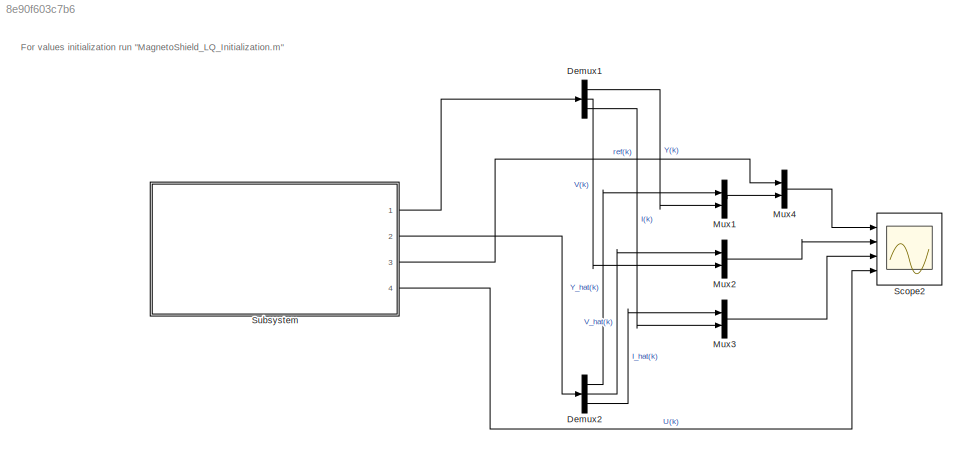
MODEL slx_8e90f603c7b6
KIND model
CONFIG AbsTol = auto
CONFIG EnableMultiTasking = off
CONFIG FixedStep = auto
CONFIG MaxStep = auto
CONFIG MinStep = auto
CONFIG RelTol = 1e-3
CONFIG SampleTimeConstraint = Unconstrained
CONFIG Solver = VariableStepAuto
CONFIG SolverName = VariableStepAuto
CONFIG StartTime = 0.0
CONFIG StopTime = 15
BLOCK [Demux] Demux1
  DisplayOption = bar
  Outputs = 3
  Ports = [1, 3]
BLOCK [Demux] Demux2
  DisplayOption = bar
  Outputs = 3
  Ports = [1, 3]
BLOCK [Mux] Mux1
  DisplayOption = bar
  Inputs = 2
  Ports = [2, 1]
BLOCK [Mux] Mux2
  DisplayOption = bar
  Inputs = 2
  Ports = [2, 1]
BLOCK [Mux] Mux3
  DisplayOption = bar
  Inputs = 2
  Ports = [2, 1]
BLOCK [Mux] Mux4
  DisplayOption = bar
  Inputs = 2
  Ports = [2, 1]
BLOCK [Scope] Scope2
  Floating = off
  NumInputPorts = 4
  Ports = [4]
  ScopeSpecificationString = Simulink.scopes.TimeScopeBlockCfg('CurrentConfiguration', extmgr.ConfigurationSet(extmgr.Configuration('Core','General UI',true,'FigureColor',[0 0 0]),extmgr.Configuration('Core','Source UI',true),extmgr.Configuration('Sources','WiredSimulink',true,'DataLoggingSaveFormat','Structure','DataLogging',true),extmgr.Configuration('Visuals','Time Domain',true,'SerializedDisplays',{struct('MinYLimReal','0...<+3958ch>
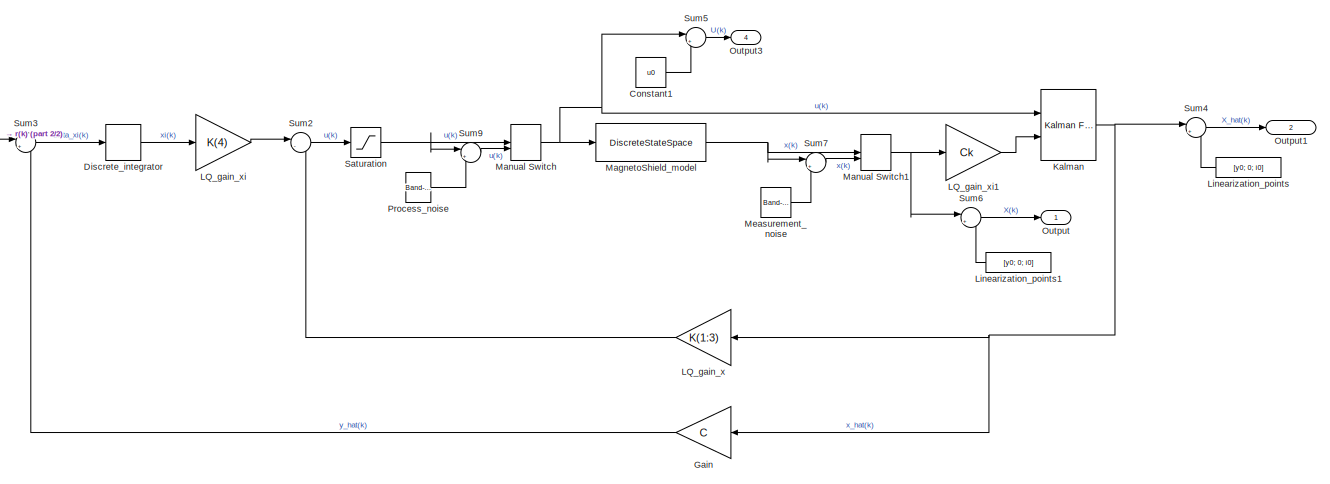
[diagram: Subsystem - part 1/2, most of the canvas]
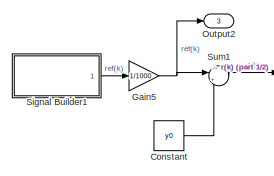
[diagram: Subsystem - part 2/2, middle left region]
BLOCK [SubSystem] Subsystem
  Ports = [0, 4]
  RequestExecContextInheritance = off
BLOCK [Constant] Subsystem/Constant
  Value = y0
BLOCK [Constant] Subsystem/Constant1
  Value = u0
BLOCK [DiscreteIntegrator] Subsystem/Discrete_integrator
  ICPrevOutput = DiscIntNeverNeededParam
  ICPrevScaledInput = DiscIntNeverNeededParam
  InitialConditionSetting = Auto
  IntegratorMethod = Accumulation: Forward Euler
  LimitOutput = on
  Ports = [1, 1]
  SampleTime = Ts
BLOCK [Gain] Subsystem/Gain
  Gain = C
  Multiplication = Matrix(K*u)
  OutDataTypeStr = Inherit: Inherit via internal rule
  ParamDataTypeStr = Inherit: Inherit via internal rule
  SaturateOnIntegerOverflow = off
BLOCK [Gain] Subsystem/Gain5
  Gain = 1/1000
  OutDataTypeStr = Inherit: Inherit via internal rule
  ParamDataTypeStr = Inherit: Inherit via internal rule
  SaturateOnIntegerOverflow = off
BLOCK [Reference] Subsystem/Kalman  REF=ctrlSharedLib/Kalman Filter
  Ports = [2, 1]
  SourceBlock = ctrlSharedLib/Kalman Filter
  SourceProductBaseCode = CT,ID
  SourceType = ctrlKalmanFilter
BLOCK [Gain] Subsystem/LQ_gain_x
  Gain = K(1:3)
  Multiplication = Matrix(K*u)
  OutDataTypeStr = Inherit: Inherit via internal rule
  ParamDataTypeStr = Inherit: Inherit via internal rule
  SaturateOnIntegerOverflow = off
BLOCK [Gain] Subsystem/LQ_gain_xi
  Gain = K(4)
  Multiplication = Matrix(K*u)
  OutDataTypeStr = Inherit: Inherit via internal rule
  ParamDataTypeStr = Inherit: Inherit via internal rule
  SaturateOnIntegerOverflow = off
BLOCK [Gain] Subsystem/LQ_gain_xi1
  Gain = Ck
  Multiplication = Matrix(K*u)
  OutDataTypeStr = Inherit: Inherit via internal rule
  ParamDataTypeStr = Inherit: Inherit via internal rule
  SaturateOnIntegerOverflow = off
BLOCK [Constant] Subsystem/Linearization_points
  Value = [y0; 0; i0]
BLOCK [Constant] Subsystem/Linearization_points1
  Value = [y0; 0; i0]
BLOCK [DiscreteStateSpace] Subsystem/MagnetoShield_model
  A = A
  B = B
  C = [1 0 0;0 1 0;0 0 1]
  D = [0;0;0]
  InitialCondition = [0.017-y0;0;0-i0]
  SampleTime = Ts
BLOCK [ManualSwitch] Subsystem/Manual Switch
  CurrentSetting = 0
BLOCK [ManualSwitch] Subsystem/Manual Switch1
  CurrentSetting = 0
BLOCK [Reference] Subsystem/Measurement_noise  REF=simulink/Sources/Band-Limited
White Noise
  Ports = [0, 1]
  SourceBlock = simulink/Sources/Band-Limited\nWhite Noise
  SourceProductBaseCode = SL
  SourceType = Band-Limited White Noise.
BLOCK [Outport] Subsystem/Output
  IconDisplay = Signal name
BLOCK [Outport] Subsystem/Output1
  IconDisplay = Signal name
  Port = 2
BLOCK [Outport] Subsystem/Output2
  IconDisplay = Signal name
  Port = 3
BLOCK [Outport] Subsystem/Output3
  IconDisplay = Signal name
  Port = 4
BLOCK [Reference] Subsystem/Process_noise  REF=simulink/Sources/Band-Limited
White Noise
  Ports = [0, 1]
  SourceBlock = simulink/Sources/Band-Limited\nWhite Noise
  SourceProductBaseCode = SL
  SourceType = Band-Limited White Noise.
BLOCK [Saturate] Subsystem/Saturation
  InputPortMap = u0
  LowerLimit = 0-u0
  Ports = [1, 1]
  UpperLimit = 10-u0
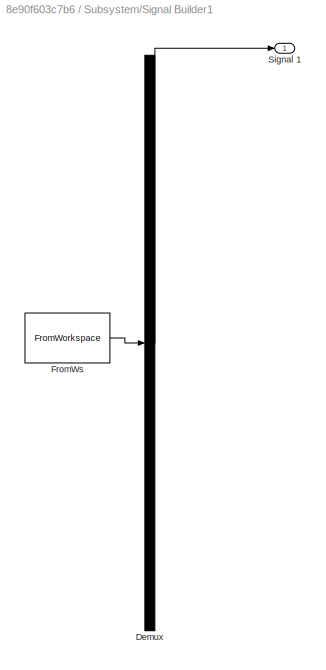
BLOCK [SubSystem] Subsystem/Signal Builder1
  ClipboardFcn = sigbuilder_block('clipboard');
  CloseFcn = sigbuilder_block('close');
  ContinueFcn = sigbuilder_block('continue');
  CopyFcn = sigbuilder_block('copy');
  DeleteFcn = sigbuilder_block('delete');
  LoadFcn = sigbuilder_block('load');
  MaskHideContents = on
  ModelCloseFcn = sigbuilder_block('modelClose');
  NameChangeFcn = sigbuilder_block('namechange');
  OpenFcn = sigbuilder_block('open',[434.4 169.8 550.8 400.2 ]);
  PauseFcn = sigbuilder_block('pause');
  Ports = [0, 1]
  PreSaveFcn = sigbuilder_block('preSave');
  RequestExecContextInheritance = off
  StartFcn = sigbuilder_block('start');
  StopFcn = sigbuilder_block('stop');
  Tag = STV Subsys
BLOCK [Demux] Subsystem/Signal Builder1/Demux
  Outputs = 1
  Ports = [1, 1]
  Tag = STV Demux
BLOCK [FromWorkspace] Subsystem/Signal Builder1/FromWs
  SampleTime = 0
  Tag = STV FromWs
  VariableName = tuvar
  ZeroCross = on
BLOCK [Outport] Subsystem/Signal Builder1/Signal 1
  IconDisplay = Port number
  Tag = STV Outport
BLOCK [Sum] Subsystem/Sum1
  IconShape = round
  InputSameDT = off
  Inputs = |+-
  OutDataTypeStr = Inherit: Inherit via internal rule
  Ports = [2, 1]
  SaturateOnIntegerOverflow = off
BLOCK [Sum] Subsystem/Sum2
  IconShape = round
  InputSameDT = off
  Inputs = |--
  OutDataTypeStr = Inherit: Inherit via internal rule
  Ports = [2, 1]
  SaturateOnIntegerOverflow = off
BLOCK [Sum] Subsystem/Sum3
  IconShape = round
  InputSameDT = off
  Inputs = |+-
  OutDataTypeStr = Inherit: Inherit via internal rule
  Ports = [2, 1]
  SaturateOnIntegerOverflow = off
BLOCK [Sum] Subsystem/Sum4
  IconShape = round
  InputSameDT = off
  Inputs = |++
  OutDataTypeStr = Inherit: Inherit via internal rule
  Ports = [2, 1]
  SaturateOnIntegerOverflow = off
BLOCK [Sum] Subsystem/Sum5
  IconShape = round
  InputSameDT = off
  Inputs = |++
  OutDataTypeStr = Inherit: Inherit via internal rule
  Ports = [2, 1]
  SaturateOnIntegerOverflow = off
BLOCK [Sum] Subsystem/Sum6
  IconShape = round
  InputSameDT = off
  Inputs = |++
  OutDataTypeStr = Inherit: Inherit via internal rule
  Ports = [2, 1]
  SaturateOnIntegerOverflow = off
BLOCK [Sum] Subsystem/Sum7
  IconShape = round
  InputSameDT = off
  Inputs = |++
  OutDataTypeStr = Inherit: Inherit via internal rule
  Ports = [2, 1]
  SaturateOnIntegerOverflow = off
BLOCK [Sum] Subsystem/Sum9
  IconShape = round
  InputSameDT = off
  Inputs = |++
  OutDataTypeStr = Inherit: Inherit via internal rule
  Ports = [2, 1]
  SaturateOnIntegerOverflow = off
ANNOTATION (root): For values initialization run "MagnetoShield_LQ_Initialization.m"
LINE Demux1:1 -> Mux1:2
LINE Demux1:2 -> Mux2:2
LINE Demux1:3 -> Mux3:2
LINE Demux2:1 -> Mux1:1
LINE Demux2:2 -> Mux2:1
LINE Demux2:3 -> Mux3:1
LINE Mux1:1 -> Mux4:2
LINE Mux2:1 -> Scope2:2
LINE Mux3:1 -> Scope2:3
LINE Mux4:1 -> Scope2:1
LINE Subsystem/Constant1:1 -> Subsystem/Sum5:2
LINE Subsystem/Constant:1 -> Subsystem/Sum1:2
LINE Subsystem/Discrete_integrator:1 -> Subsystem/LQ_gain_xi:1
NET Subsystem/Gain5:1 -> Subsystem/Output2:1, Subsystem/Sum1:1
LINE Subsystem/Gain:1 -> Subsystem/Sum3:2
NET Subsystem/Kalman:1 -> Subsystem/Gain:1, Subsystem/LQ_gain_x:1, Subsystem/Sum4:1
LINE Subsystem/LQ_gain_x:1 -> Subsystem/Sum2:2
LINE Subsystem/LQ_gain_xi1:1 -> Subsystem/Kalman:2
LINE Subsystem/LQ_gain_xi:1 -> Subsystem/Sum2:1
LINE Subsystem/Linearization_points1:1 -> Subsystem/Sum6:2
LINE Subsystem/Linearization_points:1 -> Subsystem/Sum4:2
NET Subsystem/MagnetoShield_model:1 -> Subsystem/Manual Switch1:1, Subsystem/Sum7:1
NET Subsystem/Manual Switch1:1 -> Subsystem/LQ_gain_xi1:1, Subsystem/Sum6:1
NET Subsystem/Manual Switch:1 -> Subsystem/Kalman:1, Subsystem/MagnetoShield_model:1, Subsystem/Sum5:1
LINE Subsystem/Measurement_noise:1 -> Subsystem/Sum7:2
LINE Subsystem/Process_noise:1 -> Subsystem/Sum9:2
NET Subsystem/Saturation:1 -> Subsystem/Manual Switch:1, Subsystem/Sum9:1
LINE Subsystem/Signal Builder1:1 -> Subsystem/Gain5:1
LINE Subsystem/Sum1:1 -> Subsystem/Sum3:1
LINE Subsystem/Sum2:1 -> Subsystem/Saturation:1
LINE Subsystem/Sum3:1 -> Subsystem/Discrete_integrator:1
LINE Subsystem/Sum4:1 -> Subsystem/Output1:1
LINE Subsystem/Sum5:1 -> Subsystem/Output3:1
LINE Subsystem/Sum6:1 -> Subsystem/Output:1
LINE Subsystem/Sum7:1 -> Subsystem/Manual Switch1:2
LINE Subsystem/Sum9:1 -> Subsystem/Manual Switch:2
LINE Subsystem:1 -> Demux1:1
LINE Subsystem:2 -> Demux2:1
LINE Subsystem:3 -> Mux4:1
LINE Subsystem:4 -> Scope2:4
note: NET lines group one-source signal fan-out (src -> all destinations, sorted); 1:1 wires keep LINE
